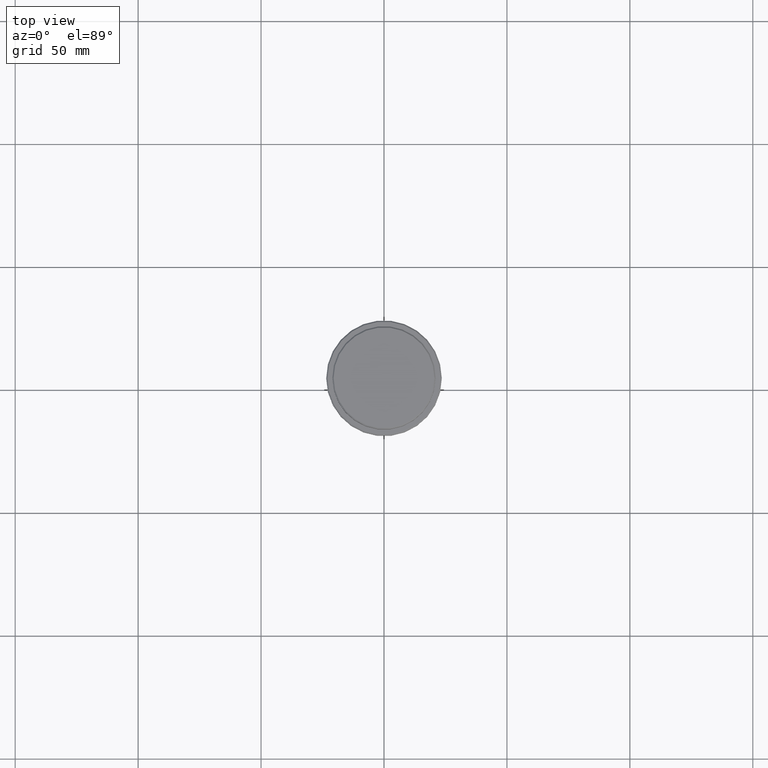
[diagram: clean part render]
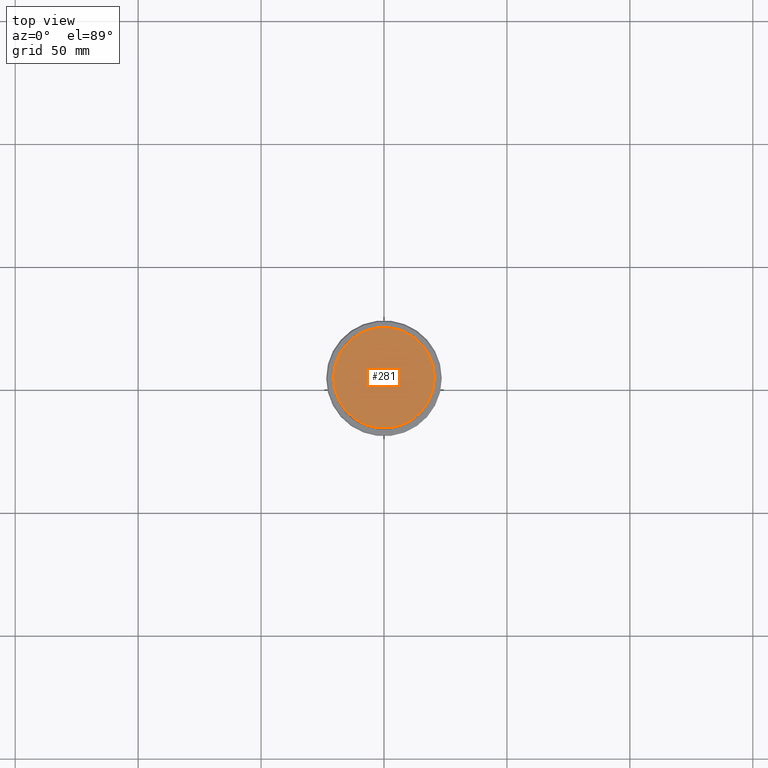
[diagram: same view with one face highlighted and labeled with its STEP entity id]
A machine part, top view. The second image highlights one B-rep face of the part: STEP entity #281.
In plain terms, the highlighted planar face has unit normal (0, -0, 1).
Its self-contained STEP definition (entity closure, byte-faithful):
#17 = AXIS2_PLACEMENT_3D ( 'NONE', #157, #1373, #50 ) ;
#50 = DIRECTION ( 'NONE',  ( 1.000000000000000000, 0.000000000000000000, 0.000000000000000000 ) ) ;
#157 = CARTESIAN_POINT ( 'NONE',  ( 0.000000000000000000, 0.000000000000000000, 0.000000000000000000 ) ) ;
#187 = CARTESIAN_POINT ( 'NONE',  ( 20.50000000000001776, 2.541142108230758663E-15, 0.000000000000000000 ) ) ;
#237 = FACE_OUTER_BOUND ( 'NONE', #1144, .T. ) ;
#281 = ADVANCED_FACE ( 'NONE', ( #237 ), #1328, .T. ) ;
#473 = DIRECTION ( 'NONE',  ( 1.000000000000000000, 0.000000000000000000, 0.000000000000000000 ) ) ;
#496 = AXIS2_PLACEMENT_3D ( 'NONE', #994, #579, #473 ) ;
#497 = EDGE_CURVE ( 'NONE', #580, #1318, #1411, .T. ) ;
#564 = DIRECTION ( 'NONE',  ( 1.000000000000000000, 0.000000000000000000, 0.000000000000000000 ) ) ;
#579 = DIRECTION ( 'NONE',  ( 0.000000000000000000, -0.000000000000000000, 1.000000000000000000 ) ) ;
#580 = VERTEX_POINT ( 'NONE', #876 ) ;
#755 = EDGE_CURVE ( 'NONE', #1318, #580, #819, .T. ) ;
#766 = ORIENTED_EDGE ( 'NONE', *, *, #755, .T. ) ;
#819 = CIRCLE ( 'NONE', #1342, 20.50000000000001776 ) ;
#876 = CARTESIAN_POINT ( 'NONE',  ( -20.50000000000001776, 0.000000000000000000, 0.000000000000000000 ) ) ;
#986 = DIRECTION ( 'NONE',  ( -0.000000000000000000, -0.000000000000000000, 1.000000000000000000 ) ) ;
#994 = CARTESIAN_POINT ( 'NONE',  ( 0.000000000000000000, 0.000000000000000000, 0.000000000000000000 ) ) ;
#1144 = EDGE_LOOP ( 'NONE', ( #1265, #766 ) ) ;
#1265 = ORIENTED_EDGE ( 'NONE', *, *, #497, .T. ) ;
#1318 = VERTEX_POINT ( 'NONE', #187 ) ;
#1325 = CARTESIAN_POINT ( 'NONE',  ( 0.000000000000000000, 0.000000000000000000, 0.000000000000000000 ) ) ;
#1328 = PLANE ( 'NONE',  #496 ) ;
#1342 = AXIS2_PLACEMENT_3D ( 'NONE', #1325, #986, #564 ) ;
#1373 = DIRECTION ( 'NONE',  ( -0.000000000000000000, -0.000000000000000000, 1.000000000000000000 ) ) ;
#1411 = CIRCLE ( 'NONE', #17, 20.50000000000001776 ) ;